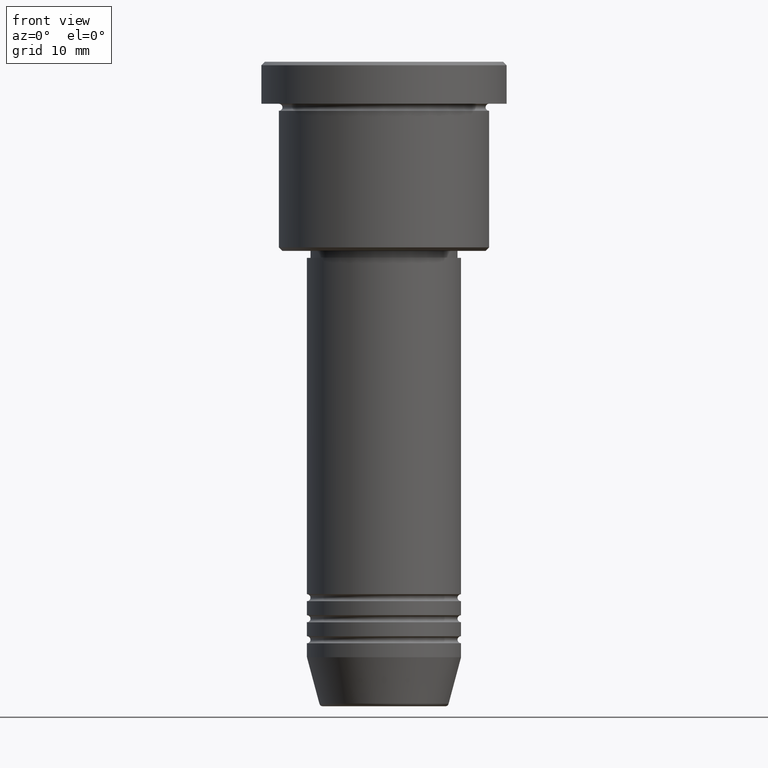
[diagram: clean part render]
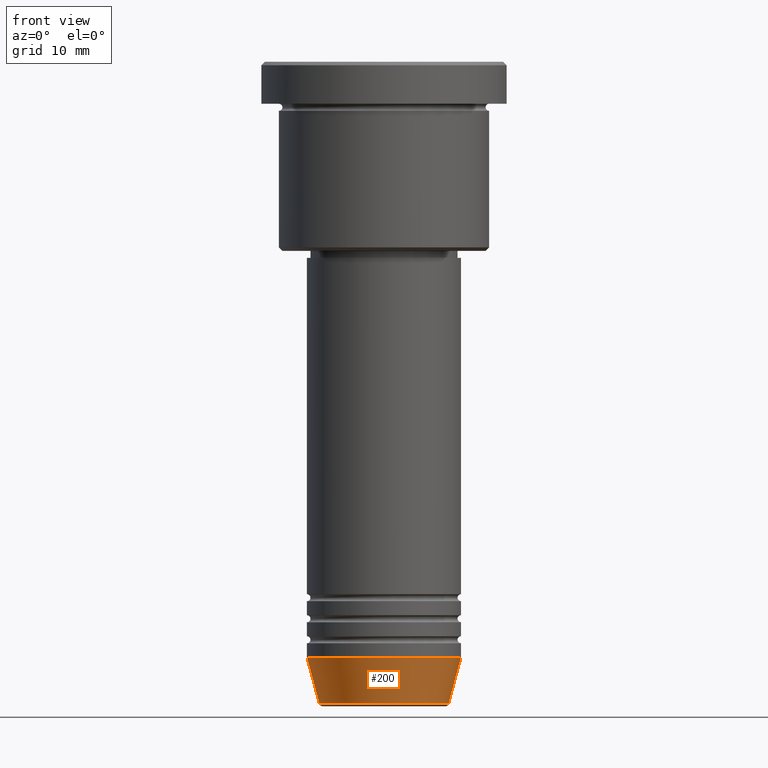
[diagram: same view with one face highlighted and labeled with its STEP entity id]
A machine part, front view. The second image highlights one B-rep face of the part: STEP entity #200.
In plain terms, the highlighted conical surface has half-angle 15 deg.
Its self-contained STEP definition (entity closure, byte-faithful):
#6 = EDGE_CURVE ( 'NONE', #179, #112, #643, .T. ) ;
#53 = CARTESIAN_POINT ( 'NONE',  ( 0.000000000000000000, 0.000000000000000000, -84.99999999999998579 ) ) ;
#56 = EDGE_LOOP ( 'NONE', ( #1006, #904, #223, #740 ) ) ;
#112 = VERTEX_POINT ( 'NONE', #172 ) ;
#117 = AXIS2_PLACEMENT_3D ( 'NONE', #777, #571, #393 ) ;
#134 = DIRECTION ( 'NONE',  ( 1.000000000000000000, 0.000000000000000000, 0.000000000000000000 ) ) ;
#172 = CARTESIAN_POINT ( 'NONE',  ( 9.223655072137187716, 0.000000000000000000, -91.62940952255124216 ) ) ;
#179 = VERTEX_POINT ( 'NONE', #513 ) ;
#200 = ADVANCED_FACE ( 'NONE', ( #1058 ), #1162, .T. ) ;
#223 = ORIENTED_EDGE ( 'NONE', *, *, #827, .T. ) ;
#298 = DIRECTION ( 'NONE',  ( -0.2588190451025213501, 3.169619151431772337E-17, 0.9659258262890680902 ) ) ;
#314 = AXIS2_PLACEMENT_3D ( 'NONE', #940, #967, #134 ) ;
#322 = VERTEX_POINT ( 'NONE', #1028 ) ;
#323 = CARTESIAN_POINT ( 'NONE',  ( 11.00000000000000000, 0.000000000000000000, -84.99999999999998579 ) ) ;
#364 = VECTOR ( 'NONE', #298, 1000.000000000000000 ) ;
#393 = DIRECTION ( 'NONE',  ( 1.000000000000000000, 0.000000000000000000, 0.000000000000000000 ) ) ;
#409 = CIRCLE ( 'NONE', #314, 11.00000000000000000 ) ;
#456 = CARTESIAN_POINT ( 'NONE',  ( -11.00000000000000000, 1.347111479062088405E-15, -84.99999999999998579 ) ) ;
#513 = CARTESIAN_POINT ( 'NONE',  ( -9.223655072137187716, 1.238341722557647004E-15, -91.62940952255124216 ) ) ;
#571 = DIRECTION ( 'NONE',  ( -0.000000000000000000, -0.000000000000000000, 1.000000000000000000 ) ) ;
#594 = DIRECTION ( 'NONE',  ( -0.000000000000000000, -0.000000000000000000, 1.000000000000000000 ) ) ;
#615 = VERTEX_POINT ( 'NONE', #627 ) ;
#627 = CARTESIAN_POINT ( 'NONE',  ( -11.00000000000000000, 1.347111479062088405E-15, -84.99999999999998579 ) ) ;
#643 = CIRCLE ( 'NONE', #117, 9.223655072137187716 ) ;
#740 = ORIENTED_EDGE ( 'NONE', *, *, #814, .F. ) ;
#777 = CARTESIAN_POINT ( 'NONE',  ( 0.000000000000000000, 0.000000000000000000, -91.62940952255124216 ) ) ;
#814 = EDGE_CURVE ( 'NONE', #615, #322, #409, .T. ) ;
#827 = EDGE_CURVE ( 'NONE', #112, #322, #1131, .T. ) ;
#841 = AXIS2_PLACEMENT_3D ( 'NONE', #53, #594, #893 ) ;
#851 = LINE ( 'NONE', #456, #364 ) ;
#861 = VECTOR ( 'NONE', #864, 1000.000000000000000 ) ;
#864 = DIRECTION ( 'NONE',  ( 0.2588190451025213501, 0.000000000000000000, 0.9659258262890680902 ) ) ;
#893 = DIRECTION ( 'NONE',  ( 1.000000000000000000, 0.000000000000000000, 0.000000000000000000 ) ) ;
#904 = ORIENTED_EDGE ( 'NONE', *, *, #6, .T. ) ;
#940 = CARTESIAN_POINT ( 'NONE',  ( 0.000000000000000000, 0.000000000000000000, -84.99999999999998579 ) ) ;
#967 = DIRECTION ( 'NONE',  ( -0.000000000000000000, -0.000000000000000000, 1.000000000000000000 ) ) ;
#1006 = ORIENTED_EDGE ( 'NONE', *, *, #1142, .F. ) ;
#1028 = CARTESIAN_POINT ( 'NONE',  ( 11.00000000000000000, 0.000000000000000000, -84.99999999999998579 ) ) ;
#1058 = FACE_OUTER_BOUND ( 'NONE', #56, .T. ) ;
#1131 = LINE ( 'NONE', #323, #861 ) ;
#1142 = EDGE_CURVE ( 'NONE', #179, #615, #851, .T. ) ;
#1162 = CONICAL_SURFACE ( 'NONE', #841, 11.00000000000000000, 0.2617993877991500740 ) ;